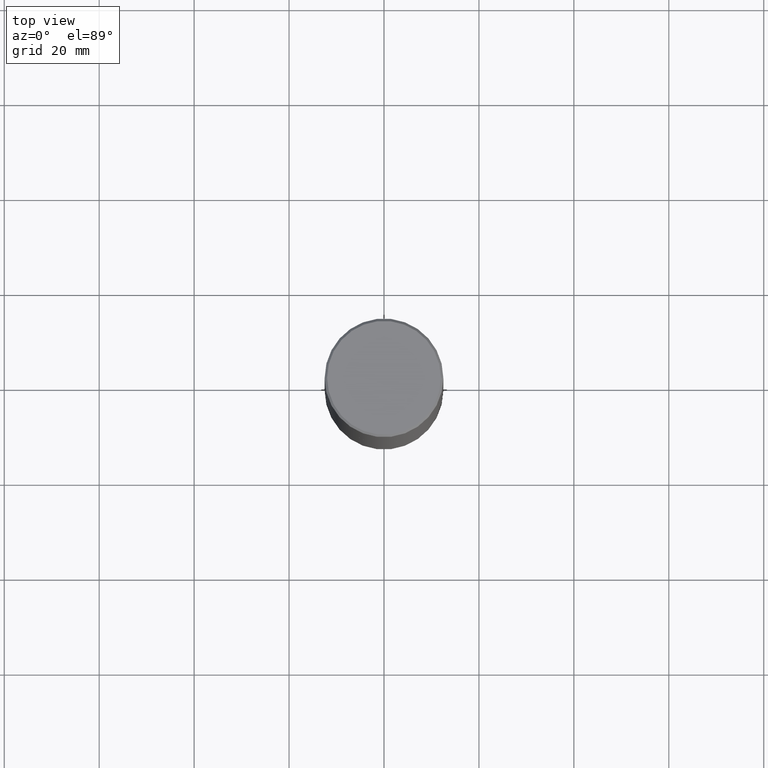
[diagram: clean part render]
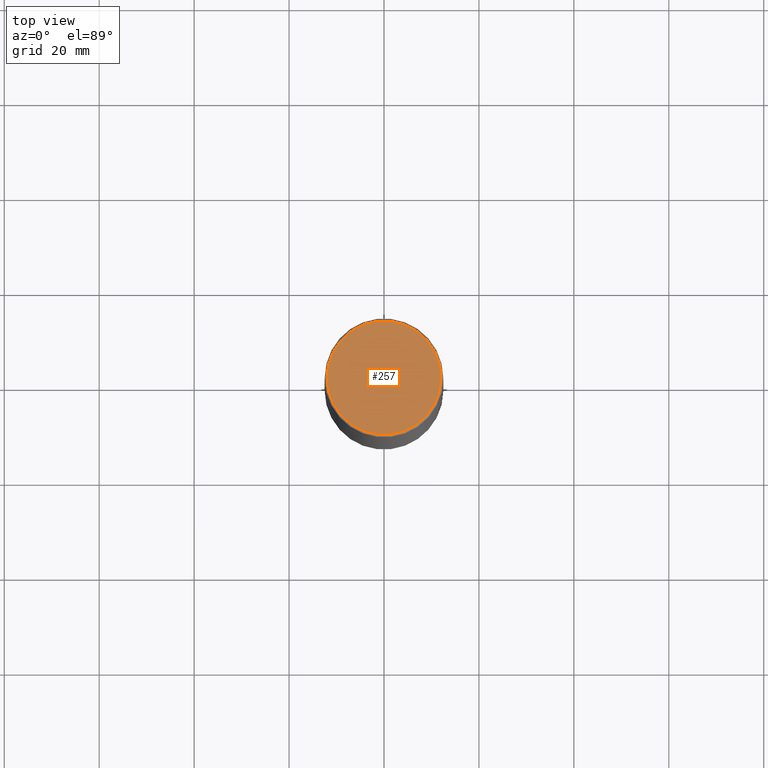
[diagram: same view with one face highlighted and labeled with its STEP entity id]
A machine part, top view. The second image highlights one B-rep face of the part: STEP entity #257.
In plain terms, the highlighted planar face has unit normal (0, -0, -1).
Its self-contained STEP definition (entity closure, byte-faithful):
#29 = ORIENTED_EDGE ( 'NONE', *, *, #39, .T. ) ;
#33 = ORIENTED_EDGE ( 'NONE', *, *, #240, .T. ) ;
#38 = DIRECTION ( 'NONE',  ( 1.000000000000000000, -6.982962677686265922E-15, 4.876006802227162976E-29 ) ) ;
#39 = EDGE_CURVE ( 'NONE', #61, #276, #105, .T. ) ;
#55 = AXIS2_PLACEMENT_3D ( 'NONE', #239, #357, #104 ) ;
#60 = FACE_OUTER_BOUND ( 'NONE', #193, .T. ) ;
#61 = VERTEX_POINT ( 'NONE', #229 ) ;
#63 = DIRECTION ( 'NONE',  ( -1.000000000000000000, 6.982962677686265922E-15, -4.876176775795935793E-29 ) ) ;
#98 = CARTESIAN_POINT ( 'NONE',  ( -2.087702828670439639E-46, 2.980686340760894400E-32, 8.537024980200822558E-18 ) ) ;
#104 = DIRECTION ( 'NONE',  ( 1.000000000000000000, -6.982962677686265922E-15, 4.876006802227162976E-29 ) ) ;
#105 = CIRCLE ( 'NONE', #364, 0.4721499999999996255 ) ;
#149 = AXIS2_PLACEMENT_3D ( 'NONE', #182, #341, #63 ) ;
#182 = CARTESIAN_POINT ( 'NONE',  ( 3.297005828269567997E-15, 0.4721499999999996255, -1.644234401644689488E-15 ) ) ;
#186 = CARTESIAN_POINT ( 'NONE',  ( 0.4721499999999996255, -3.342703923013973396E-15, 8.537024980224040028E-18 ) ) ;
#193 = EDGE_LOOP ( 'NONE', ( #29, #33 ) ) ;
#229 = CARTESIAN_POINT ( 'NONE',  ( -0.4721499999999996255, 3.331920641657999252E-15, 8.537024980177643606E-18 ) ) ;
#239 = CARTESIAN_POINT ( 'NONE',  ( -2.087702828670439639E-46, 2.980686340760894400E-32, 8.537024980200822558E-18 ) ) ;
#240 = EDGE_CURVE ( 'NONE', #276, #61, #315, .T. ) ;
#257 = ADVANCED_FACE ( 'NONE', ( #60 ), #278, .F. ) ;
#276 = VERTEX_POINT ( 'NONE', #186 ) ;
#278 = PLANE ( 'NONE',  #149 ) ;
#281 = DIRECTION ( 'NONE',  ( -2.445468806185136597E-29, 3.491481338843145583E-15, 1.000000000000000000 ) ) ;
#315 = CIRCLE ( 'NONE', #55, 0.4721499999999996255 ) ;
#341 = DIRECTION ( 'NONE',  ( 2.438088387897960049E-29, -3.491481338843145188E-15, -1.000000000000000000 ) ) ;
#357 = DIRECTION ( 'NONE',  ( -2.445468806185136597E-29, 3.491481338843145583E-15, 1.000000000000000000 ) ) ;
#364 = AXIS2_PLACEMENT_3D ( 'NONE', #98, #281, #38 ) ;